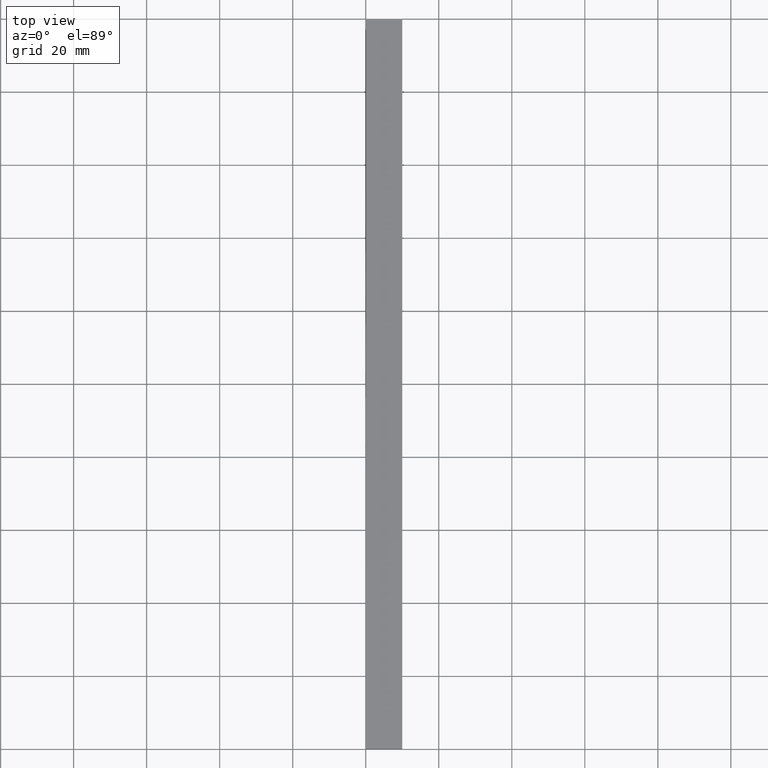
[diagram: clean part render]
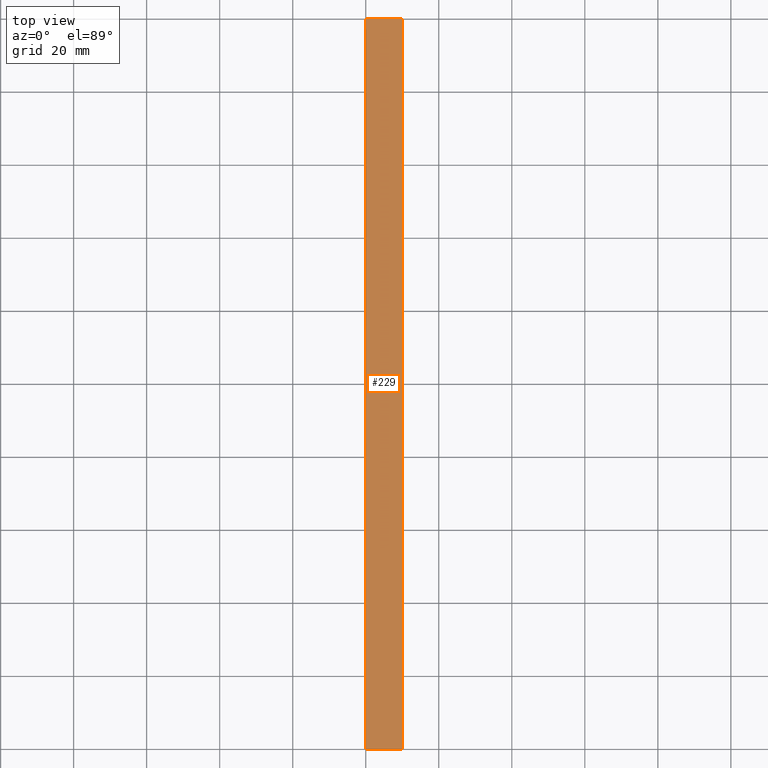
[diagram: same view with one face highlighted and labeled with its STEP entity id]
A machine part, top view. The second image highlights one B-rep face of the part: STEP entity #229.
In plain terms, the highlighted planar face has unit normal (0, 0, -1).
Its self-contained STEP definition (entity closure, byte-faithful):
#1 = CARTESIAN_POINT ( 'NONE',  ( 10.00000000000000000, 1000.000000000000000, 5.000000000000000000 ) ) ;
#4 = EDGE_CURVE ( 'NONE', #96, #182, #109, .T. ) ;
#6 = LINE ( 'NONE', #1, #53 ) ;
#8 = ORIENTED_EDGE ( 'NONE', *, *, #196, .T. ) ;
#14 = LINE ( 'NONE', #61, #115 ) ;
#18 = VERTEX_POINT ( 'NONE', #106 ) ;
#26 = ORIENTED_EDGE ( 'NONE', *, *, #133, .F. ) ;
#46 = CARTESIAN_POINT ( 'NONE',  ( 0.0000000000000000000, 1000.000000000000000, 5.000000000000000000 ) ) ;
#51 = DIRECTION ( 'NONE',  ( 1.000000000000000000, 0.0000000000000000000, 0.0000000000000000000 ) ) ;
#52 = DIRECTION ( 'NONE',  ( 0.0000000000000000000, 0.0000000000000000000, -1.000000000000000000 ) ) ;
#53 = VECTOR ( 'NONE', #222, 1000.000000000000000 ) ;
#60 = VECTOR ( 'NONE', #51, 1000.000000000000000 ) ;
#61 = CARTESIAN_POINT ( 'NONE',  ( 0.0000000000000000000, 0.0000000000000000000, 5.000000000000000000 ) ) ;
#62 = CARTESIAN_POINT ( 'NONE',  ( 0.0000000000000000000, 1000.000000000000000, 5.000000000000000000 ) ) ;
#70 = LINE ( 'NONE', #46, #111 ) ;
#96 = VERTEX_POINT ( 'NONE', #105 ) ;
#98 = DIRECTION ( 'NONE',  ( 1.000000000000000000, 0.0000000000000000000, 0.0000000000000000000 ) ) ;
#99 = ORIENTED_EDGE ( 'NONE', *, *, #4, .F. ) ;
#105 = CARTESIAN_POINT ( 'NONE',  ( 0.0000000000000000000, 200.0000000000000000, 5.000000000000000000 ) ) ;
#106 = CARTESIAN_POINT ( 'NONE',  ( 10.00000000000000000, 0.0000000000000000000, 5.000000000000000000 ) ) ;
#109 = LINE ( 'NONE', #219, #60 ) ;
#111 = VECTOR ( 'NONE', #210, 1000.000000000000000 ) ;
#115 = VECTOR ( 'NONE', #98, 1000.000000000000000 ) ;
#130 = DIRECTION ( 'NONE',  ( -1.000000000000000000, 0.0000000000000000000, 0.0000000000000000000 ) ) ;
#133 = EDGE_CURVE ( 'NONE', #182, #18, #6, .T. ) ;
#161 = CARTESIAN_POINT ( 'NONE',  ( 0.0000000000000000000, 0.0000000000000000000, 5.000000000000000000 ) ) ;
#166 = FACE_OUTER_BOUND ( 'NONE', #224, .T. ) ;
#170 = VERTEX_POINT ( 'NONE', #161 ) ;
#180 = CARTESIAN_POINT ( 'NONE',  ( 10.00000000000000000, 200.0000000000000000, 5.000000000000000000 ) ) ;
#182 = VERTEX_POINT ( 'NONE', #180 ) ;
#191 = PLANE ( 'NONE',  #238 ) ;
#196 = EDGE_CURVE ( 'NONE', #170, #18, #14, .T. ) ;
#200 = EDGE_CURVE ( 'NONE', #96, #170, #70, .T. ) ;
#210 = DIRECTION ( 'NONE',  ( 0.0000000000000000000, -1.000000000000000000, 0.0000000000000000000 ) ) ;
#219 = CARTESIAN_POINT ( 'NONE',  ( 0.0000000000000000000, 200.0000000000000000, 5.000000000000000000 ) ) ;
#222 = DIRECTION ( 'NONE',  ( 0.0000000000000000000, -1.000000000000000000, 0.0000000000000000000 ) ) ;
#224 = EDGE_LOOP ( 'NONE', ( #8, #26, #99, #235 ) ) ;
#229 = ADVANCED_FACE ( 'NONE', ( #166 ), #191, .F. ) ;
#235 = ORIENTED_EDGE ( 'NONE', *, *, #200, .T. ) ;
#238 = AXIS2_PLACEMENT_3D ( 'NONE', #62, #52, #130 ) ;